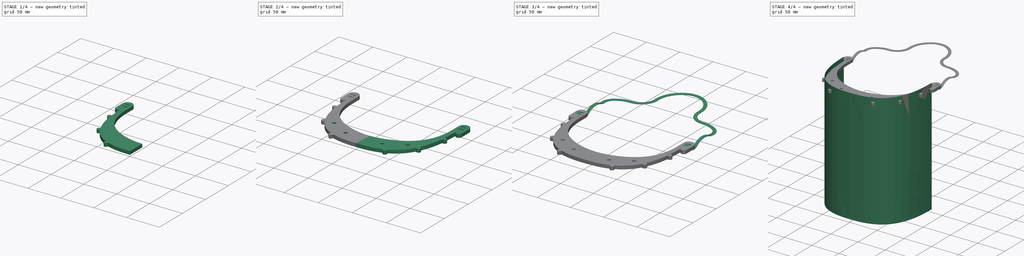
[diagram: build sequence overview — one tinted view per stage of 4, left to right]
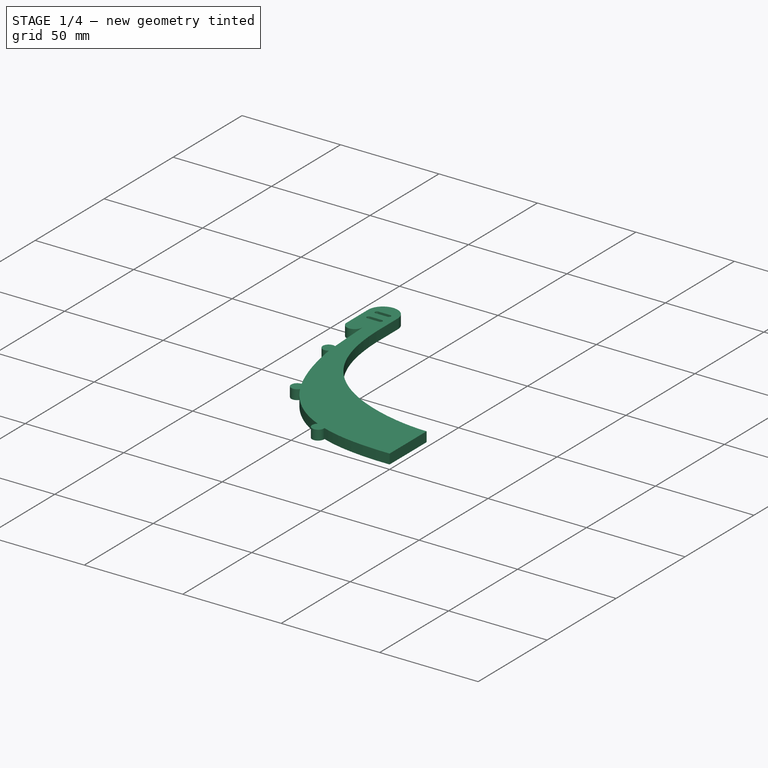
[diagram: stage 1 of 4 — iso view after this stage's code; geometry added in this stage tinted green]
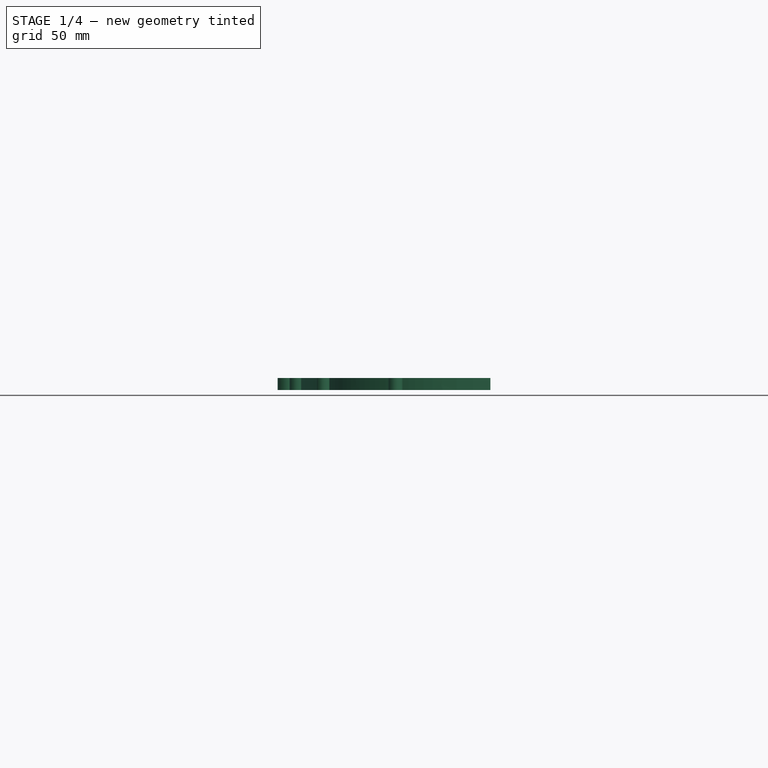
[diagram: stage 1 of 4 — front view after this stage's code; geometry added in this stage tinted green]
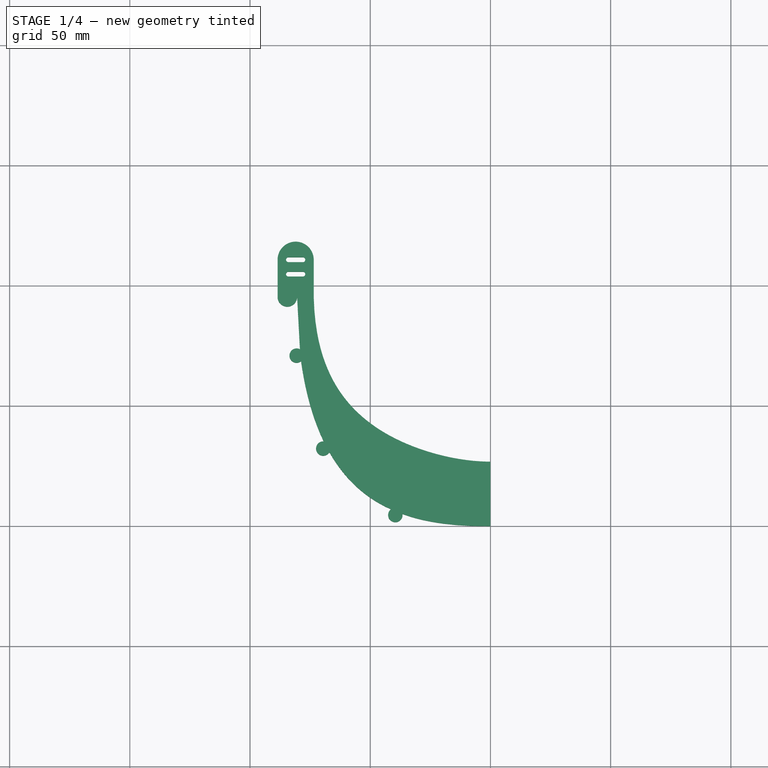
[diagram: stage 1 of 4 — top view after this stage's code; geometry added in this stage tinted green]
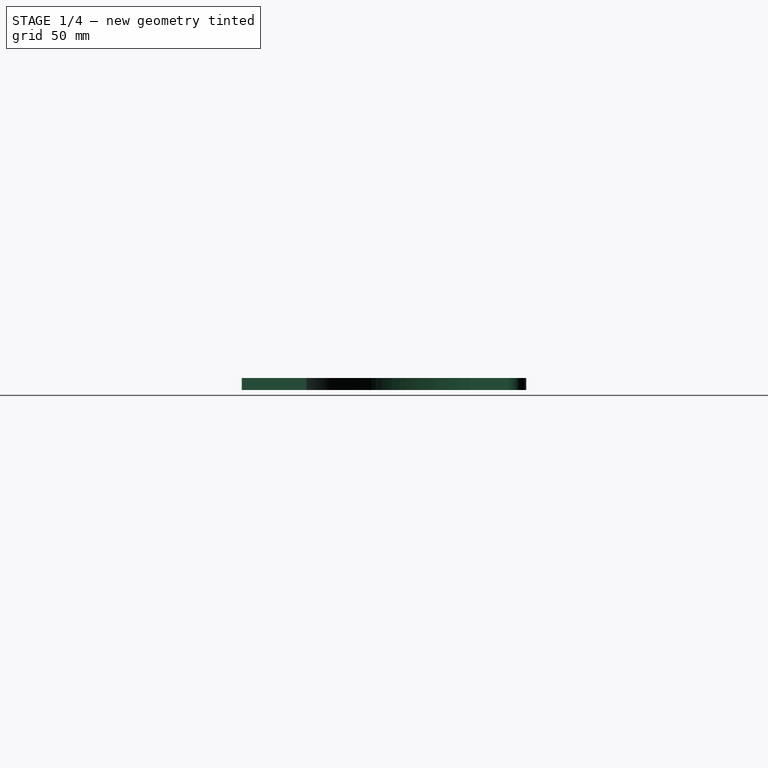
[diagram: stage 1 of 4 — right view after this stage's code; geometry added in this stage tinted green]
FCSTD DOCUMENT  (FreeCAD 0.19R19443 (Git))
Label: M-19_v100k
License: CreativeCommons Attribution
LicenseURL: http://creativecommons.org/licenses/by/4.0/
objects: Sketcher::SketchObject×9, PartDesign::Pad×3, PartDesign::Body×3, Part::Mirroring×3, Part::MultiFuse×3, PartDesign::AdditivePipe×2, PartDesign::Pocket×2, Part::Part2DObjectPython×1
note: 33 computed .brp shape members not serialized (recipe doc carries the construction recipe); baked Part::Feature solids carry a one-line shape summary decoded from their .brp

FEATURE [Sketcher::SketchObject] Sketch135
  sketch-geometry (30):
    g0: Circle [constr] CenterX=-73.5 CenterY=101.84 CenterZ=0 NormalX=0 NormalY=0 NormalZ=1 AngleXU=0 Radius=10
    g1: Circle [constr] CenterX=-74.771 CenterY=49.44 CenterZ=0 NormalX=0 NormalY=0 NormalZ=1 AngleXU=0 Radius=10
    g2: Circle [constr] CenterX=-49.529 CenterY=37.3397 CenterZ=0 NormalX=0 NormalY=0 NormalZ=1 AngleXU=0 Radius=10
    g3: BSplineCurve PolesCount=5 KnotsCount=2 Degree=4 IsPeriodic=0
    g4: GeomPoint [constr] X=-73.5 Y=101.84 Z=0
    g5: GeomPoint [constr] X=0 Y=26.8397 Z=0
    g6: Circle [constr] CenterX=-22.686 CenterY=26.7801 CenterZ=0 NormalX=0 NormalY=0 NormalZ=1 AngleXU=0 Radius=10
    g7: Circle [constr] CenterX=0 CenterY=26.8397 CenterZ=0 NormalX=0 NormalY=0 NormalZ=1 AngleXU=0 Radius=10
    g8: LineSegment StartX=0 StartY=26.8397 StartZ=0 EndX=0 EndY=0 EndZ=0
    g9: Circle [constr] CenterX=0 CenterY=0 CenterZ=0 NormalX=0 NormalY=0 NormalZ=1 AngleXU=0 Radius=3
    g10: Circle [constr] CenterX=-24.669 CenterY=-0.204 CenterZ=0 NormalX=0 NormalY=0 NormalZ=1 AngleXU=0 Radius=3
    g11: Circle [constr] CenterX=-39 CenterY=6.04 CenterZ=0 NormalX=0 NormalY=0 NormalZ=1 AngleXU=0 Radius=3
    g12: BSplineCurve PolesCount=3 KnotsCount=2 Degree=2 IsPeriodic=0
    g13: GeomPoint [constr] X=0 Y=0 Z=0
    g14: GeomPoint [constr] X=-39 Y=6.04 Z=0
    g15: Circle [constr] CenterX=-39 CenterY=6.04 CenterZ=0 NormalX=0 NormalY=0 NormalZ=1 AngleXU=0 Radius=7
    g16: Circle [constr] CenterX=-72.6 CenterY=18.986 CenterZ=0 NormalX=0 NormalY=0 NormalZ=1 AngleXU=0 Radius=7
    g17: BSplineCurve PolesCount=3 KnotsCount=2 Degree=2 IsPeriodic=0
    g18: GeomPoint [constr] X=-39 Y=6.04 Z=0
    g19: GeomPoint [constr] X=-79.11 Y=71.198 Z=0
    g20: Circle [constr] CenterX=-79.11 CenterY=71.198 CenterZ=0 NormalX=0 NormalY=0 NormalZ=1 AngleXU=0 Radius=7
    g21: Circle [constr] CenterX=-79.11 CenterY=71.198 CenterZ=0 NormalX=0 NormalY=0 NormalZ=1 AngleXU=0 Radius=5
    g22: Circle [constr] CenterX=-80.407 CenterY=95.3618 CenterZ=0 NormalX=0 NormalY=0 NormalZ=1 AngleXU=0 Radius=5
    g23: BSplineCurve PolesCount=2 KnotsCount=2 Degree=1 IsPeriodic=0
    g24: GeomPoint [constr] X=-79.11 Y=71.198 Z=0
    g25: GeomPoint [constr] X=-80.407 Y=95.3618 Z=0
    g26: ArcOfCircle CenterX=-84.471 CenterY=95.3618 CenterZ=0 NormalX=0 NormalY=0 NormalZ=1 AngleXU=0 Radius=4.064 StartAngle=3.14159 EndAngle=6.28319
    g27: LineSegment StartX=-88.535 StartY=95.3618 StartZ=0 EndX=-88.535 EndY=110.84 EndZ=0
    g28: LineSegment StartX=-73.5 StartY=110.84 StartZ=0 EndX=-73.5 EndY=101.84 EndZ=0
    g29: ArcOfCircle CenterX=-81.0175 CenterY=110.84 CenterZ=0 NormalX=0 NormalY=0 NormalZ=1 AngleXU=0 Radius=7.5175 StartAngle=0 EndAngle=3.14159
  constraints (74):
    c: Radius(g0) = 10
    c: Equal(g0,g1)
    c: Equal(g0,g2)
    c: InternalAlignment(g0,g3)
    c: InternalAlignment(g1,g3)
    c: InternalAlignment(g2,g3)
    c: InternalAlignment(g4,g3)
    c: InternalAlignment(g5,g3)
    c: InternalAlignment(g6,g3)
    c: Equal(g6,g0)
    c: InternalAlignment(g7,g3)
    c: Equal(g7,g0)
    c: Coincident(g8,g3)
    c: Vertical(g8)
    c: DistanceY(g8,g8) = 26.8397
    c: Coincident(g12,g8)
    c: Radius(g9) = 3
    c: Equal(g9,g10)
    c: Equal(g9,g11)
    c: InternalAlignment(g9,g12)
    c: InternalAlignment(g10,g12)
    c: InternalAlignment(g11,g12)
    c: InternalAlignment(g13,g12)
    c: InternalAlignment(g14,g12)
    c: Coincident(g17,g12)
    c: Radius(g15) = 7
    c: Equal(g15,g16)
    c: InternalAlignment(g15,g17)
    c: InternalAlignment(g16,g17)
    c: InternalAlignment(g18,g17)
    c: InternalAlignment(g19,g17)
    c: InternalAlignment(g20,g17)
    c: Equal(g20,g15)
    c: Radius(g21) = 5
    c: Equal(g21,g22)
    c: InternalAlignment(g21,g23)
    c: InternalAlignment(g22,g23)
    c: InternalAlignment(g24,g23)
    c: InternalAlignment(g25,g23)
    c: Coincident(g23,g17)
    c: Vertical(g27)
    c: Coincident(g28,g3)
    c: Vertical(g28)
    c: DistanceX(g6,g3) = 22.686
    c: DistanceY(g6,g3) = 0.059601
    c: DistanceX(g2,g3) = 49.529
    c: DistanceY(g3,g2) = 10.5
    c: DistanceX(g3,g3) = 73.5
    c: DistanceY(g3,g3) = 75
    c: DistanceX(g10,g8) = 24.669
    c: DistanceY(g10,g8) = 0.204
    c: DistanceX(g12,g8) = 39
    c: DistanceY(g8,g12) = 6.04
    c: DistanceX(g16,g8) = 72.6
    c: DistanceY(g8,g16) = 18.986
    c: DistanceX(g1,g8) = 74.771
    c: DistanceY(g8,g1) = 49.44
    c: DistanceX(g17,g8) = 79.11
    c: DistanceY(g8,g17) = 71.198
    c: DistanceX(g23,g8) = 80.407
    c: DistanceY(g28,g28) = 9
    c: Tangent(g26,g27) = 1.5708
    c: PointOnObject(g3,g-2)
    c: Angle(g29) = 3.14159
    c: Coincident(g29,g28)
    c: Coincident(g29,g27)
    c: DistanceY(g29,g28) = 0
    c: DistanceY(g-1,g8) = 0
    c: DistanceY(g26,g23) = 0
    c: Coincident(g22,g23)
    c: Coincident(g22,g25)
    c: Coincident(g22,g26)
    c: Radius(g26) = 4.064
    c: DistanceY(g26,g23) = 0
FEATURE [PartDesign::Pad] Pad
  Length = 5.0038
  Length2 = 99.9998
  Profile = -> Sketch135
  Refine = true
  Type = 0
FEATURE [PartDesign::Pocket] Pocket
  BaseFeature = -> Pad
  Length = 5.0038
  Length2 = 99.9998
  Profile = -> Sketch136
  Refine = true
  Type = 1
FEATURE [Sketcher::SketchObject] Sketch137
  ExternalGeometry = -> [Pocket]
  MapMode = 5
  Placement = pos=(0,0,5.0038) rot=(0,0,1;0rad)
  sketch-geometry (14):
    g0: Circle [constr] CenterX=-39 CenterY=6.04 CenterZ=0 NormalX=0 NormalY=0 NormalZ=1 AngleXU=0 Radius=1.5
    g1: Circle CenterX=-39.5498 CenterY=4.64437 CenterZ=0 NormalX=0 NormalY=0 NormalZ=1 AngleXU=0 Radius=3
    g2: LineSegment [constr] StartX=-40.3956 StartY=6.58975 StartZ=0 EndX=-37.6044 EndY=5.49025 EndZ=0
    g3: LineSegment [constr] StartX=-39 StartY=6.04 StartZ=0 EndX=-39.5498 EndY=4.64437 EndZ=0
    g4: Circle [constr] CenterX=-79.11 CenterY=71.198 CenterZ=0 NormalX=0 NormalY=0 NormalZ=1 AngleXU=0 Radius=1.5
    g5: Circle CenterX=-80.5894 CenterY=70.9504 CenterZ=0 NormalX=0 NormalY=0 NormalZ=1 AngleXU=0 Radius=3
    g6: LineSegment [constr] StartX=-79.3576 StartY=72.6774 StartZ=0 EndX=-78.8624 EndY=69.7186 EndZ=0
    g7: LineSegment [constr] StartX=-79.11 StartY=71.198 StartZ=0 EndX=-80.5894 EndY=70.9504 EndZ=0
    g8: LineSegment [constr] StartX=-79.11 StartY=71.198 StartZ=0 EndX=-39 EndY=6.04 EndZ=0
    g9: LineSegment [constr] StartX=-59.055 StartY=38.619 StartZ=0 EndX=-68.2095 EndY=32.9837 EndZ=0
    g10: Circle [constr] CenterX=-68.2095 CenterY=32.9837 CenterZ=0 NormalX=0 NormalY=0 NormalZ=1 AngleXU=0 Radius=1.5
    g11: LineSegment [constr] StartX=-68.9137 StartY=34.3081 StartZ=0 EndX=-67.5053 EndY=31.6592 EndZ=0
    g12: LineSegment [constr] StartX=-68.2095 StartY=32.9837 StartZ=0 EndX=-69.5339 EndY=32.2794 EndZ=0
    g13: Circle CenterX=-69.5339 CenterY=32.2794 CenterZ=0 NormalX=0 NormalY=0 NormalZ=1 AngleXU=0 Radius=3
  constraints (38):
    c: Radius(g0) = 1.5
    c: Radius(g1) = 3
    c: Tangent(g1,g0)
    c: PointOnObject(g2,g0)
    c: PointOnObject(g2,g0)
    c: PointOnObject(g0,g2)
    c: Angle(g2) = -0.375246
    c: Coincident(g3,g0)
    c: Coincident(g3,g1)
    c: Angle(g2,g3) = 1.5708
    c: Radius(g4) = 1.5
    c: Radius(g5) = 3
    c: PointOnObject(g6,g4)
    c: PointOnObject(g4,g6)
    c: PointOnObject(g6,g4)
    c: Angle(g6) = -1.40499
    c: Coincident(g7,g4)
    c: PointOnObject(g7,g4)
    c: Angle(g7,g6) = 1.5708
    c: Coincident(g5,g7)
    c: Coincident(g0,g-3)
    c: Coincident(g4,g-3)
    c: Coincident(g8,g4)
    c: Coincident(g8,g0)
    c: PointOnObject(g9,g8)
    c: Symmetric(g4,g0,g9)
    c: Coincident(g10,g12)
    c: PointOnObject(g12,g10)
    c: PointOnObject(g11,g10)
    c: PointOnObject(g11,g10)
    c: PointOnObject(g10,g11)
    c: Perpendicular(g11,g12)
    c: Equal(g10,g0)
    c: Equal(g13,g1)
    c: Coincident(g13,g12)
    c: Distance(g9) = 10.75
    c: Coincident(g10,g9)
    c: Angle(g11) = -1.0821
FEATURE [PartDesign::Pad] Pad003
  BaseFeature = -> Pocket
  Length = 5.0038
  Length2 = 99.9998
  Profile = -> Sketch137
  Refine = true
  Reversed = true
  Type = 0
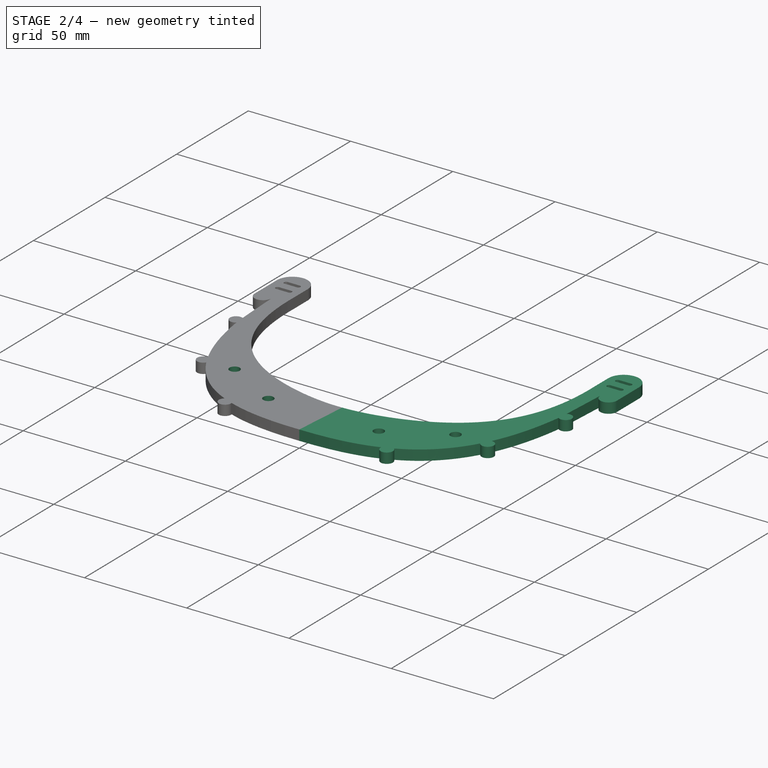
[diagram: stage 2 of 4 — iso view after this stage's code; geometry added in this stage tinted green]
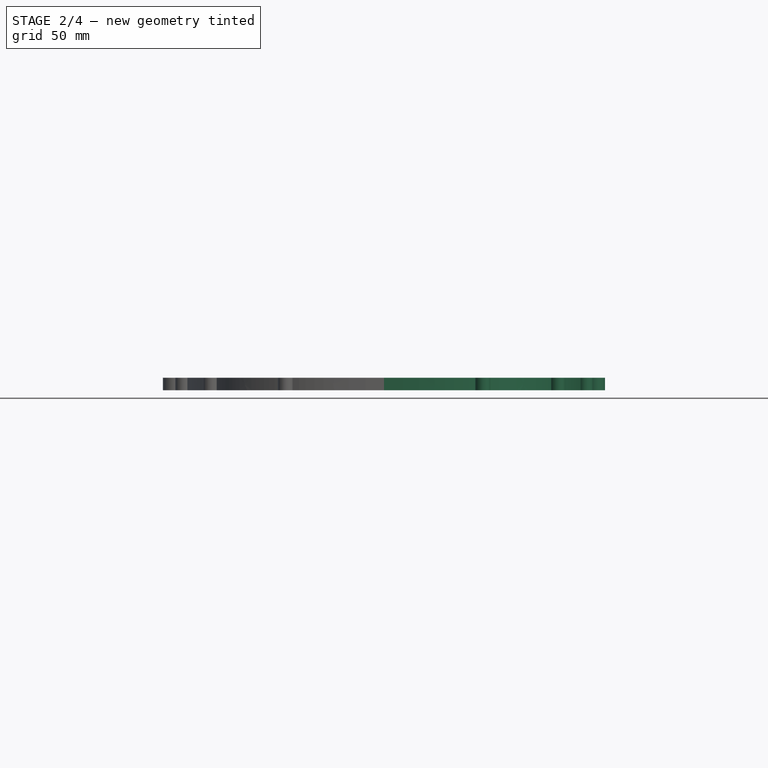
[diagram: stage 2 of 4 — front view after this stage's code; geometry added in this stage tinted green]
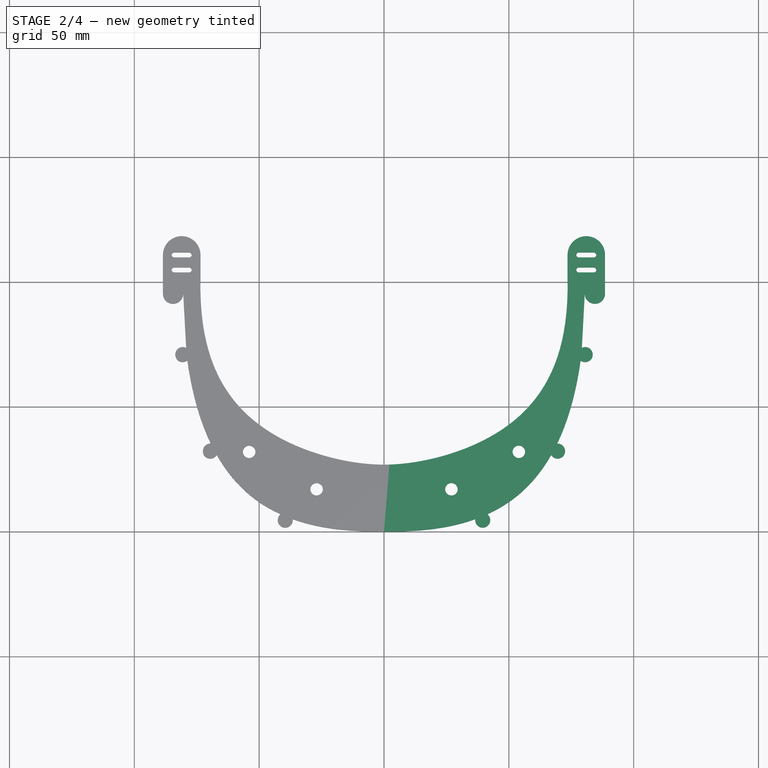
[diagram: stage 2 of 4 — top view after this stage's code; geometry added in this stage tinted green]
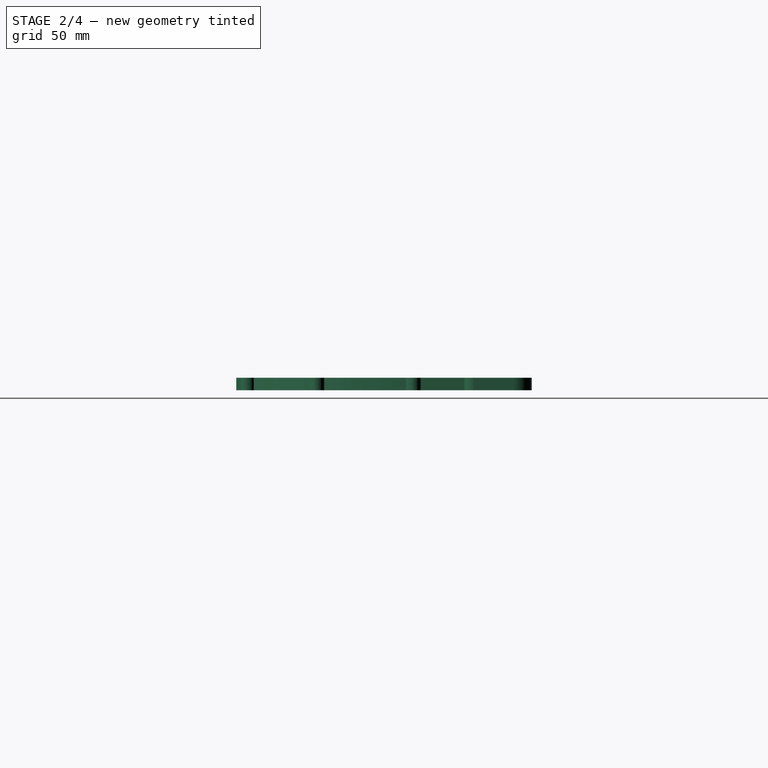
[diagram: stage 2 of 4 — right view after this stage's code; geometry added in this stage tinted green]
FEATURE [Sketcher::SketchObject] Sketch
  MapMode = 5
  Placement = pos=(0,0,5.0038) rot=(0,0,1;0rad)
  Support = -> [Pad003]
  sketch-geometry (2):
    g0: Circle CenterX=-27 CenterY=17 CenterZ=0 NormalX=0 NormalY=0 NormalZ=1 AngleXU=0 Radius=2.5
    g1: Circle CenterX=-54 CenterY=32 CenterZ=0 NormalX=0 NormalY=0 NormalZ=1 AngleXU=0 Radius=2.5
  constraints (6):
    c: Radius(g1) = 2.5
    c: Equal(g1,g0)
    c: DistanceX(g-2,g0) = -27
    c: DistanceX(g1,g0) = 27
    c: DistanceY(g0,g1) = 15
    c: DistanceY(g-1,g0) = 17
FEATURE [PartDesign::Pocket] Pocket001
  BaseFeature = -> Pad003
  Length = 5.0038
  Length2 = 99.9998
  Profile = -> Sketch
  Refine = true
  Type = 1
FEATURE [PartDesign::Body] Body
  Group = -> [Sketch135,Sketch136,Sketch137,Pad,Sketch,Pocket,Pad003,Pocket001]
  Origin = -> Origin
  Tip = -> Pocket001
FEATURE [Part::Mirroring] Part__Mirroring  label="Body (Mirror #2)"
  Base = (0,0,0)
  Normal = (1,0,0)
  Source = -> Body
FEATURE [Part::MultiFuse] Fusion
  Refine = true
  Shapes = -> [Part__Mirroring,Body]
FEATURE [Part::Part2DObjectPython] Shape2DView  # Draft 2D object (typed FeaturePython)
  Base = -> Fusion
  FuseArch = false
  HiddenLines = false
  InPlace = true
  Projection = (0,0,1)
  ProjectionMode = 0
  SegmentLength = 0.05
  Tessellation = false
  Visibility1 = false
  VisibleOnly = false
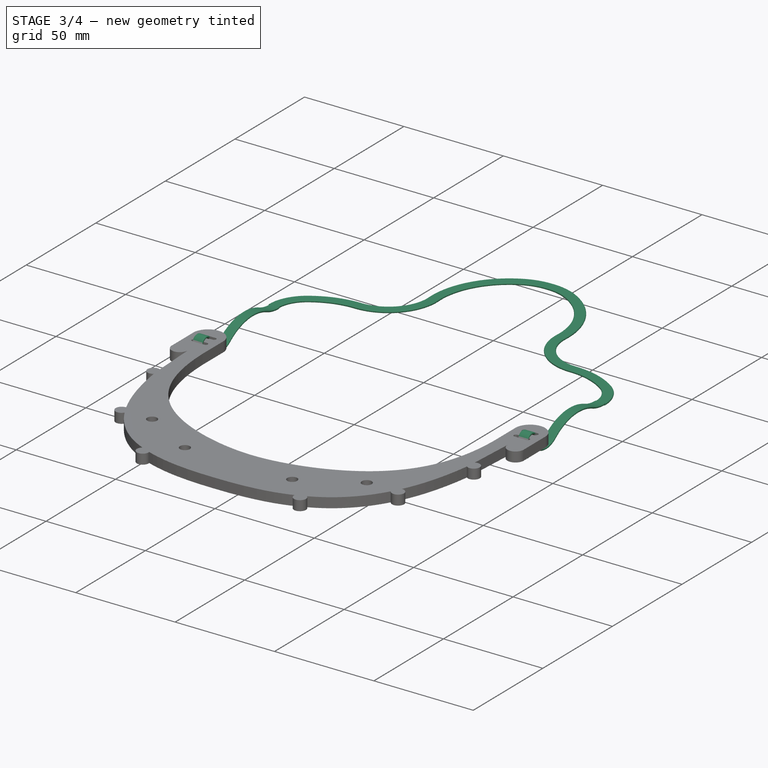
[diagram: stage 3 of 4 — iso view after this stage's code; geometry added in this stage tinted green]
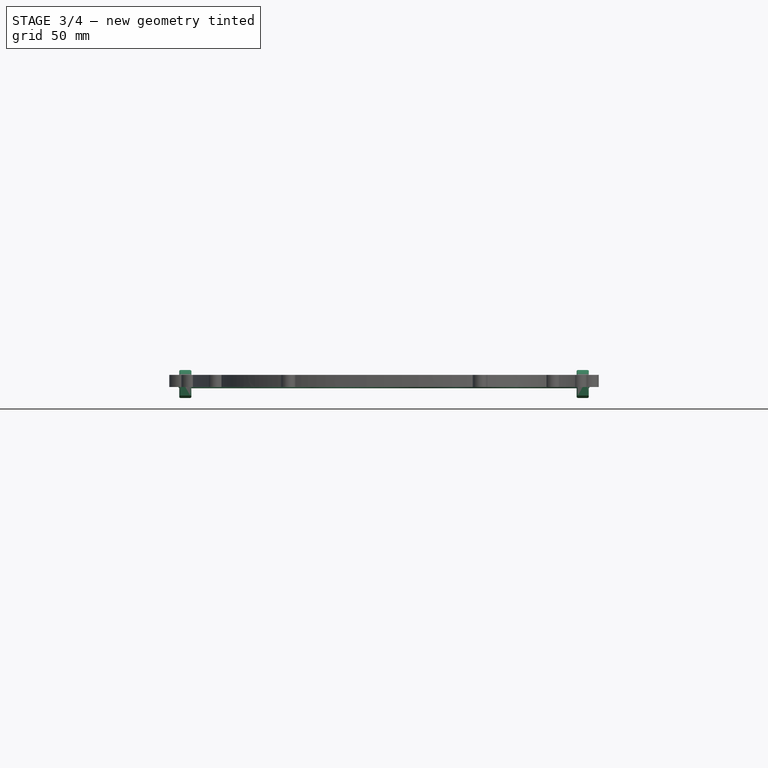
[diagram: stage 3 of 4 — front view after this stage's code; geometry added in this stage tinted green]
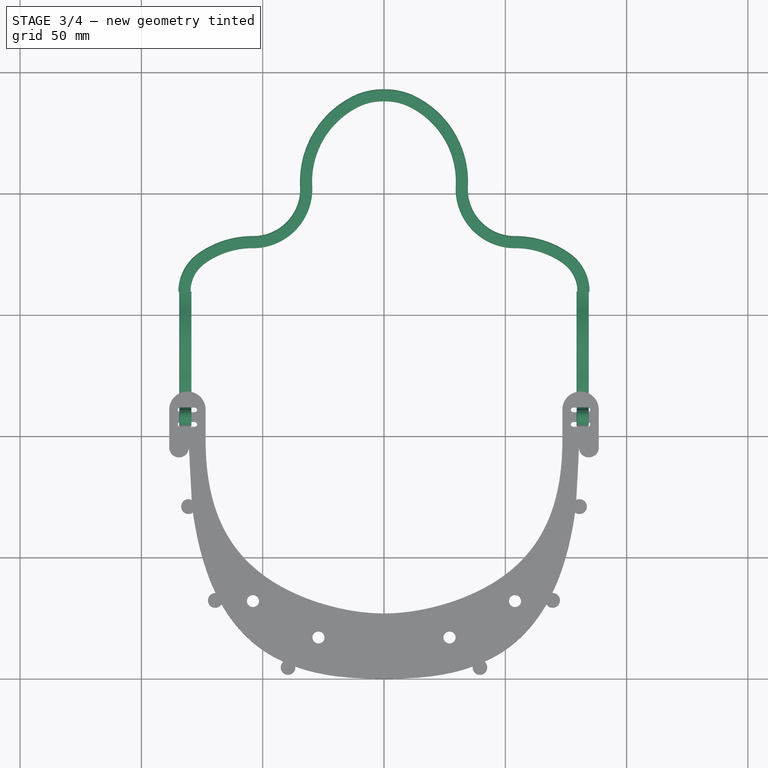
[diagram: stage 3 of 4 — top view after this stage's code; geometry added in this stage tinted green]
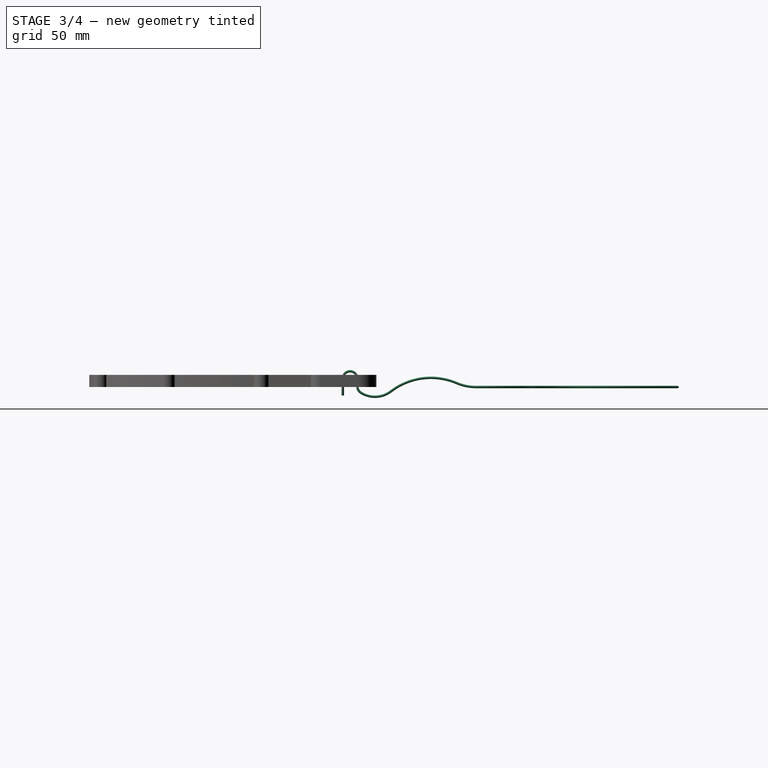
[diagram: stage 3 of 4 — right view after this stage's code; geometry added in this stage tinted green]
FEATURE [Sketcher::SketchObject] Sketch141
  AttachmentOffset = pos=(0,0,-82) rot=(0,0,1;0rad)
  MapMode = 5
  Placement = pos=(-82,1.82e-14,-1.82e-14) rot=(0.57735,0.57735,0.57735;2.0944rad)
  Support = -> [YZ_Plane003]
  sketch-geometry (7):
    g0: LineSegment StartX=104.5 StartY=-3.5 StartZ=0 EndX=104.5 EndY=3.5 EndZ=0
    g1: ArcOfCircle CenterX=107.5 CenterY=3.5 CenterZ=0 NormalX=0 NormalY=0 NormalZ=1 AngleXU=0 Radius=3 StartAngle=0 EndAngle=3.14159
    g2: LineSegment StartX=110.5 StartY=3.5 StartZ=0 EndX=110.5 EndY=0.299847 EndZ=0
    g3: ArcOfCircle CenterX=113.562 CenterY=0.299847 CenterZ=0 NormalX=0 NormalY=0 NormalZ=1 AngleXU=0 Radius=3.06158 StartAngle=3.14159 EndAngle=4.1389
    g4: ArcOfCircle CenterX=117.766 CenterY=6.80852 CenterZ=0 NormalX=0 NormalY=0 NormalZ=1 AngleXU=0 Radius=10.8099 StartAngle=4.1389 EndAngle=5.36458
    g5: ArcOfCircle CenterX=140.824 CenterY=-23.3858 CenterZ=0 NormalX=0 NormalY=0 NormalZ=1 AngleXU=0 Radius=27.1821 StartAngle=1.16919 EndAngle=2.22299
    g6: ArcOfCircle CenterX=159.479 CenterY=20.5409 CenterZ=0 NormalX=0 NormalY=0 NormalZ=1 AngleXU=0 Radius=20.5418 StartAngle=4.31079 EndAngle=4.72142
  constraints (13):
    c: Tangent(g0,g1) = 1.5708
    c: Vertical(g0)
    c: Angle(g1) = 3.14159
    c: Radius(g1) = 3
    c: DistanceY(g0,g0) = 7
    c: DistanceX(g-2,g0) = 104.5
    c: DistanceY(g-1,g0) = -3.5
    c: Tangent(g1,g2) = 1.5708
    c: Tangent(g2,g3) = -1.5708
    c: Tangent(g3,g4) = -1.5708
    c: Tangent(g4,g5) = 1.5708
    c: PointOnObject(g6,g-1)
    c: Tangent(g6,g5) = 1.5708
FEATURE [Sketcher::SketchObject] Sketch142
  ExternalGeometry = -> [Sketch141]
  MapMode = 5
  Support = -> [XY_Plane003]
  sketch-geometry (5):
    g0: ArcOfCircle CenterX=-65.5217 CenterY=159.645 CenterZ=0 NormalX=0 NormalY=0 NormalZ=1 AngleXU=0 Radius=16.4783 StartAngle=2.18984 EndAngle=3.14159
    g1: ArcOfCircle CenterX=-54.1457 CenterY=143.678 CenterZ=0 NormalX=0 NormalY=0 NormalZ=1 AngleXU=0 Radius=36.0834 StartAngle=1.56764 EndAngle=2.18984
    g2: ArcOfCircle CenterX=-53.9622 CenterY=201.899 CenterZ=0 NormalX=0 NormalY=0 NormalZ=1 AngleXU=0 Radius=22.1375 StartAngle=4.70924 EndAngle=6.33479
    g3: ArcOfCircle CenterX=4.70479 CenterY=204.929 CenterZ=0 NormalX=0 NormalY=0 NormalZ=1 AngleXU=0 Radius=36.6077 StartAngle=2.03634 EndAngle=3.1932
    g4: ArcOfCircle CenterX=-0.603118 CenterY=215.495 CenterZ=0 NormalX=0 NormalY=0 NormalZ=1 AngleXU=0 Radius=24.7836 StartAngle=1.54646 EndAngle=2.03634
  constraints (6):
    c: Tangent(g0,g1) = -1.5708
    c: Tangent(g1,g2) = 1.5708
    c: Tangent(g2,g3) = 1.5708
    c: Tangent(g3,g4) = -1.5708
    c: PointOnObject(g4,g-2)
    c: DistanceY(g0,g0) = 0
FEATURE [Sketcher::SketchObject] Sketch143
  MapMode = 5
  Support = -> [XY_Plane003]
  sketch-geometry (4):
    g0: ArcOfCircle CenterX=-83.8908 CenterY=104.511 CenterZ=0 NormalX=0 NormalY=0 NormalZ=1 AngleXU=0 Radius=0.5 StartAngle=1.5708 EndAngle=4.71239
    g1: ArcOfCircle CenterX=-79.8908 CenterY=104.511 CenterZ=0 NormalX=0 NormalY=0 NormalZ=1 AngleXU=0 Radius=0.5 StartAngle=4.71239 EndAngle=7.85398
    g2: LineSegment StartX=-83.8908 StartY=104.011 StartZ=0 EndX=-79.8908 EndY=104.011 EndZ=0
    g3: LineSegment StartX=-83.8908 StartY=105.011 StartZ=0 EndX=-79.8908 EndY=105.011 EndZ=0
  constraints (8):
    c: Tangent(g0,g3) = 1.5708
    c: Tangent(g0,g2) = -1.5708
    c: Tangent(g2,g1) = -1.5708
    c: Tangent(g3,g1) = 1.5708
    c: Horizontal(g2)
    c: Equal(g0,g1)
    c: DistanceX(g0,g1) = 4
    c: Radius(g0) = 0.5
FEATURE [PartDesign::AdditivePipe] AdditivePipe
  AuxilleryCurvelinear = true
  AuxillerySpineTangent = false
  Binormal = (0,0,0)
  Mode = 0
  Profile = -> Sketch143
  Refine = true
  Spine = -> Sketch141 [Edge1,Edge2,Edge3,Edge4,Edge5,Edge6,Edge7]
  SpineTangent = false
  Transformation = 0
  Transition = 0
FEATURE [Sketcher::SketchObject] Sketch144
  MapMode = 5
  Placement = pos=(0,0,0) rot=(0.57735,0.57735,0.57735;2.0944rad)
  Support = -> [YZ_Plane003]
  sketch-geometry (4):
    g0: ArcOfCircle CenterX=238.5 CenterY=0 CenterZ=0 NormalX=0 NormalY=0 NormalZ=1 AngleXU=0 Radius=0.5 StartAngle=1.5708 EndAngle=4.71239
    g1: ArcOfCircle CenterX=242.5 CenterY=-5.7751e-12 CenterZ=0 NormalX=0 NormalY=0 NormalZ=1 AngleXU=0 Radius=0.5 StartAngle=4.71239 EndAngle=7.85398
    g2: LineSegment StartX=238.5 StartY=-0.5 StartZ=0 EndX=242.5 EndY=-0.5 EndZ=0
    g3: LineSegment StartX=238.5 StartY=0.5 StartZ=0 EndX=242.5 EndY=0.5 EndZ=0
  constraints (10):
    c: Tangent(g0,g3) = 1.5708
    c: Tangent(g0,g2) = -1.5708
    c: Tangent(g2,g1) = -1.5708
    c: Tangent(g3,g1) = 1.5708
    c: Horizontal(g2)
    c: Equal(g0,g1)
    c: DistanceX(g0,g1) = 4
    c: Radius(g0) = 0.5
    c: PointOnObject(g0,g-1)
    c: DistanceX(g-2,g0) = 238.5
FEATURE [PartDesign::AdditivePipe] AdditivePipe001
  AuxilleryCurvelinear = true
  AuxillerySpineTangent = false
  BaseFeature = -> AdditivePipe
  Binormal = (0,0,0)
  Mode = 0
  Profile = -> Sketch144
  Refine = true
  Spine = -> Sketch142 [Edge1,Edge2,Edge3,Edge4,Edge5]
  SpineTangent = false
  Transformation = 0
  Transition = 0
FEATURE [PartDesign::Body] Body003
  Group = -> [Sketch141,Sketch142,Sketch143,AdditivePipe,Sketch144,AdditivePipe001]
  Origin = -> Origin003
  Tip = -> AdditivePipe001
FEATURE [Part::Mirroring] Part__Mirroring002  label="Body003 (Mirror #3)"
  Base = (0,0,0)
  Normal = (1,0,0)
  Source = -> Body003
FEATURE [Part::MultiFuse] Fusion002
  Refine = true
  Shapes = -> [Part__Mirroring002,Body003]
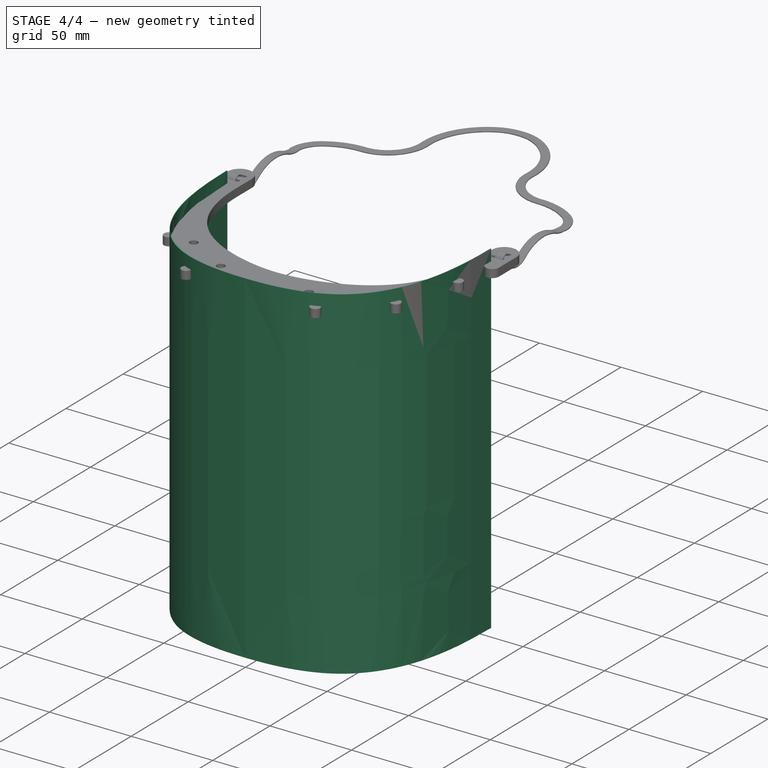
[diagram: stage 4 of 4 — iso view after this stage's code; geometry added in this stage tinted green]
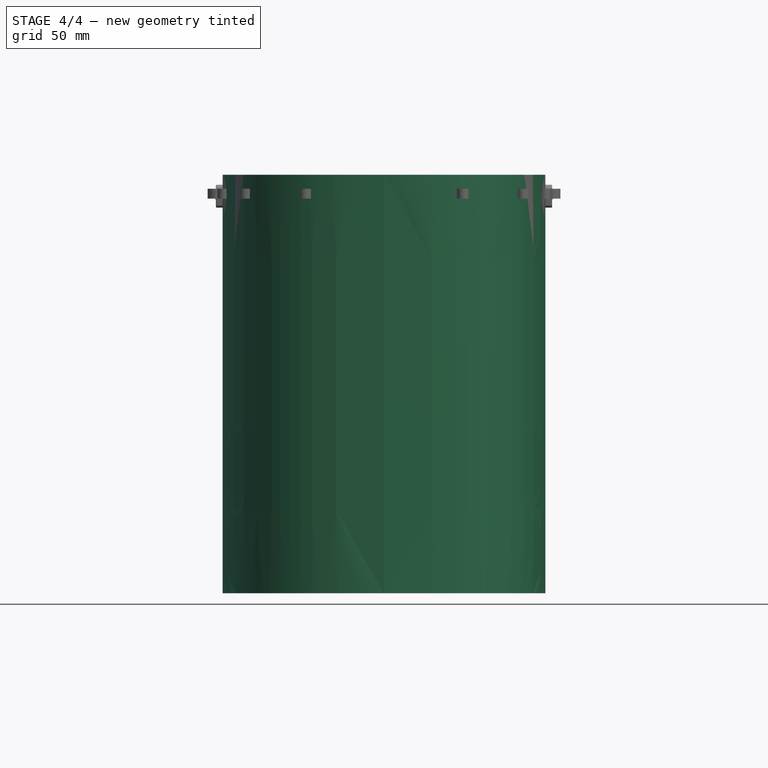
[diagram: stage 4 of 4 — front view after this stage's code; geometry added in this stage tinted green]
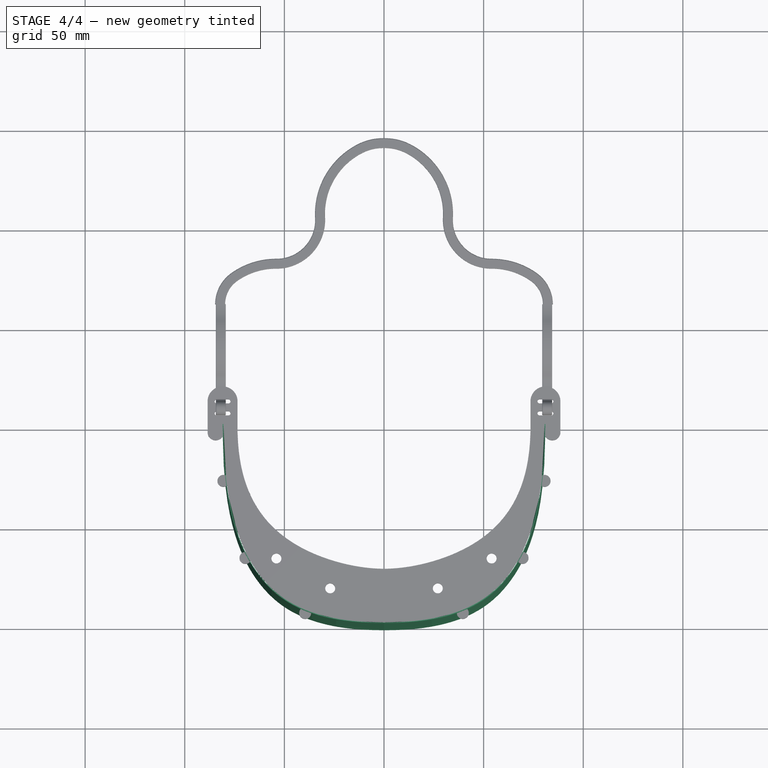
[diagram: stage 4 of 4 — top view after this stage's code; geometry added in this stage tinted green]
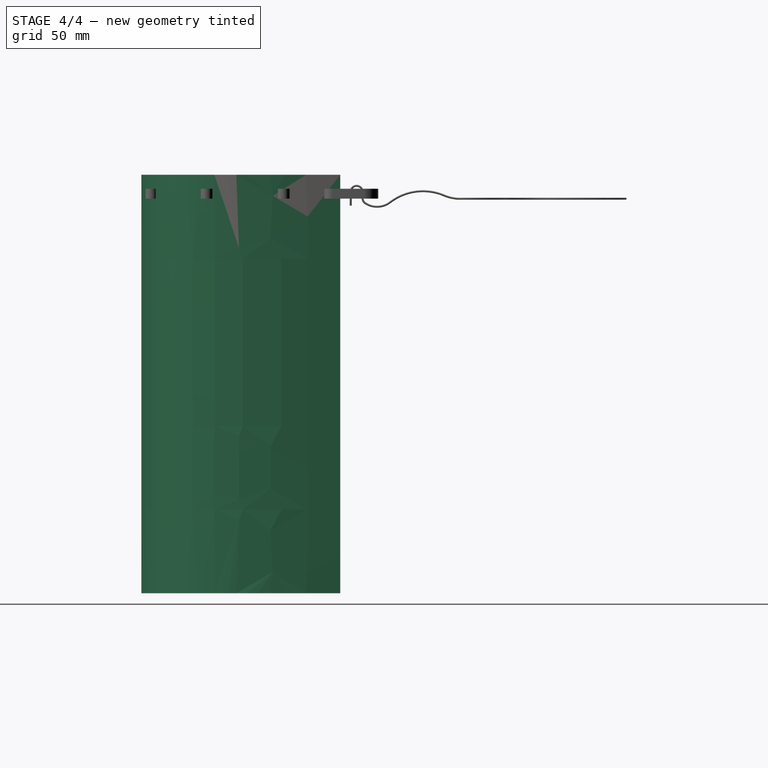
[diagram: stage 4 of 4 — right view after this stage's code; geometry added in this stage tinted green]
FEATURE [Sketcher::SketchObject] Sketch136
  ExternalGeometry = -> [Pad]
  MapMode = 5
  Placement = pos=(0,0,5.0038) rot=(0,0,1;0rad)
  Support = -> [Pad]
  sketch-geometry (10):
    g0: ArcOfCircle CenterX=-84.0175 CenterY=110.84 CenterZ=0 NormalX=0 NormalY=0 NormalZ=1 AngleXU=0 Radius=1 StartAngle=1.5708 EndAngle=4.71239
    g1: ArcOfCircle CenterX=-78.0175 CenterY=110.84 CenterZ=0 NormalX=0 NormalY=0 NormalZ=1 AngleXU=0 Radius=1 StartAngle=4.71239 EndAngle=7.85398
    g2: LineSegment StartX=-84.0175 StartY=109.84 StartZ=0 EndX=-78.0175 EndY=109.84 EndZ=0
    g3: LineSegment StartX=-84.0175 StartY=111.84 StartZ=0 EndX=-78.0175 EndY=111.84 EndZ=0
    g4: ArcOfCircle CenterX=-84.0175 CenterY=104.84 CenterZ=0 NormalX=0 NormalY=0 NormalZ=1 AngleXU=0 Radius=1 StartAngle=1.5708 EndAngle=4.71239
    g5: ArcOfCircle CenterX=-78.0175 CenterY=104.84 CenterZ=0 NormalX=0 NormalY=0 NormalZ=1 AngleXU=0 Radius=1 StartAngle=4.71239 EndAngle=7.85398
    g6: LineSegment StartX=-84.0175 StartY=103.84 StartZ=0 EndX=-78.0175 EndY=103.84 EndZ=0
    g7: LineSegment StartX=-84.0175 StartY=105.84 StartZ=0 EndX=-78.0175 EndY=105.84 EndZ=0
    g8: LineSegment [constr] StartX=-78.0175 StartY=110.84 StartZ=0 EndX=-73.5 EndY=110.84 EndZ=0
    g9: LineSegment [constr] StartX=-84.0175 StartY=110.84 StartZ=0 EndX=-88.535 EndY=110.84 EndZ=0
  constraints (26):
    c: Equal(g3,g2)
    c: Equal(g2,g7)
    c: Equal(g7,g6)
    c: Equal(g5,g1)
    c: Equal(g0,g4)
    c: Radius(g0) = 1
    c: DistanceX(g3,g3) = 6
    c: DistanceY(g4,g0) = 6
    c: Horizontal(g6)
    c: Horizontal(g7)
    c: Horizontal(g2)
    c: Tangent(g0,g3) = 1.5708
    c: Tangent(g1,g3) = 1.5708
    c: Tangent(g1,g2) = -1.5708
    c: Tangent(g0,g2) = -1.5708
    c: Tangent(g4,g7) = 1.5708
    c: Tangent(g4,g6) = -1.5708
    c: Tangent(g5,g7) = 1.5708
    c: Tangent(g5,g6) = -1.5708
    c: DistanceX(g4,g0) = 0
    c: Coincident(g8,g1)
    c: Horizontal(g8)
    c: Coincident(g9,g0)
    c: Equal(g9,g8)
    c: Coincident(g9,g-3)
    c: Coincident(g8,g-3)
FEATURE [Sketcher::SketchObject] Sketch140
  sketch-geometry (26):
    g0-g3: Circle [constr] x4 (B-spline internal-alignment scaffolding for g4; pole/knot coordinates omitted)
    g4: BSplineCurve PolesCount=6 KnotsCount=2 Degree=5 IsPeriodic=0
    g5: GeomPoint [constr] X=-80.6268 Y=99.3427 Z=0
    g6: GeomPoint [constr] X=0 Y=-0.267526 Z=0
    g7-g14: Circle [constr] x8 (B-spline internal-alignment scaffolding for g15; pole/knot coordinates omitted)
    g15: BSplineCurve PolesCount=8 KnotsCount=6 Degree=3 IsPeriodic=0
    g16-g21: GeomPoint [constr] x6 (B-spline internal-alignment scaffolding for g15; pole/knot coordinates omitted)
    g22: LineSegment StartX=-80.6268 StartY=99.3427 StartZ=0 EndX=-81 EndY=99.3427 EndZ=0
    g23: Circle [constr] CenterX=-44.5606 CenterY=0 CenterZ=0 NormalX=0 NormalY=0 NormalZ=1 AngleXU=0 Radius=10
    g24: Circle [constr] CenterX=0 CenterY=-0.267526 CenterZ=0 NormalX=0 NormalY=0 NormalZ=1 AngleXU=0 Radius=10
    g25: LineSegment StartX=0 StartY=-0.267526 StartZ=0 EndX=0 EndY=-0.467526 EndZ=0
  constraints (23):
    c: Radius(g0) = 10
    c: Equal(g0,g1)
    c: Equal(g0,g2)
    c: Equal(g0,g3)
    c: InternalAlignment(g0-g3 -> g4) x4
    c: InternalAlignment(g5,g4)
    c: InternalAlignment(g6,g4)
    c: Radius(g7) = 4
    c: Equal(g7, g8-g14) x7
    c: PointOnObject(g15,g-2)
    c: InternalAlignment(g7-g14 -> g15) x8
    c: InternalAlignment(g16-g21 -> g15) x6
    c: DistanceY(g15,g4) = 0.2
    c: Coincident(g22,g4)
    c: Coincident(g22,g15)
    c: Horizontal(g22)
    c: InternalAlignment(g23,g4)
    c: Equal(g23,g0)
    c: InternalAlignment(g24,g4)
    c: Equal(g24,g0)
    c: Coincident(g25,g4)
    c: Coincident(g25,g15)
    c: Vertical(g25)
FEATURE [PartDesign::Pad] Pad002
  Length = 210
  Length2 = 100
  Profile = -> Sketch140
  Refine = true
  Reversed = true
  Type = 0
FEATURE [PartDesign::Body] Body002
  Group = -> [Sketch140,Pad002]
  Origin = -> Origin002
  Placement = pos=(0,0,12) rot=(0,0,1;0rad)
  Tip = -> Pad002
FEATURE [Part::Mirroring] Part__Mirroring001  label="Body002 (Mirror #2)"
  Base = (0,0,0)
  Normal = (1,0,0)
  Source = -> Body002
FEATURE [Part::MultiFuse] Fusion001
  Refine = true
  Shapes = -> [Part__Mirroring001,Body002]
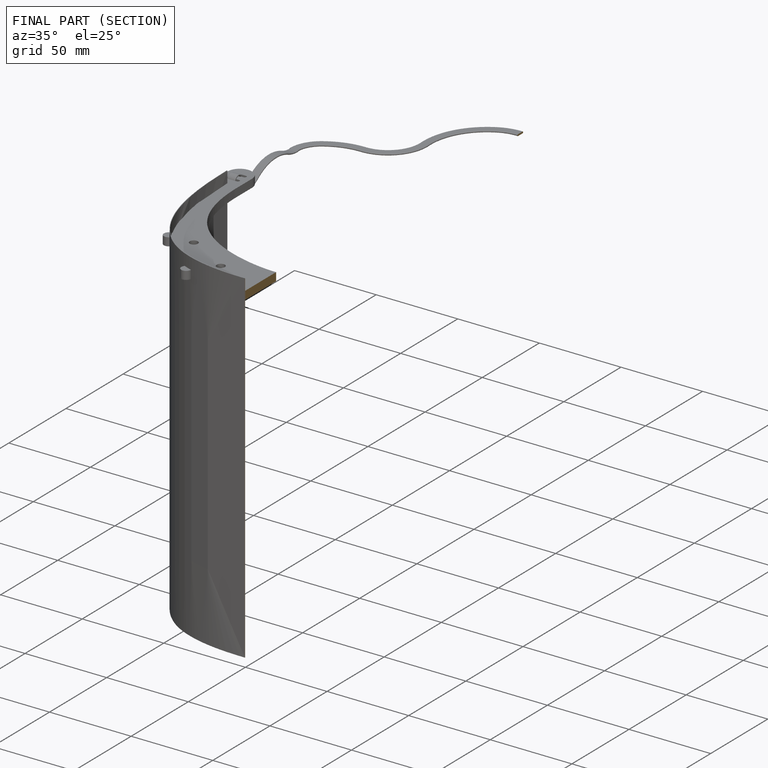
[diagram: finished part — half-section view (interior)]
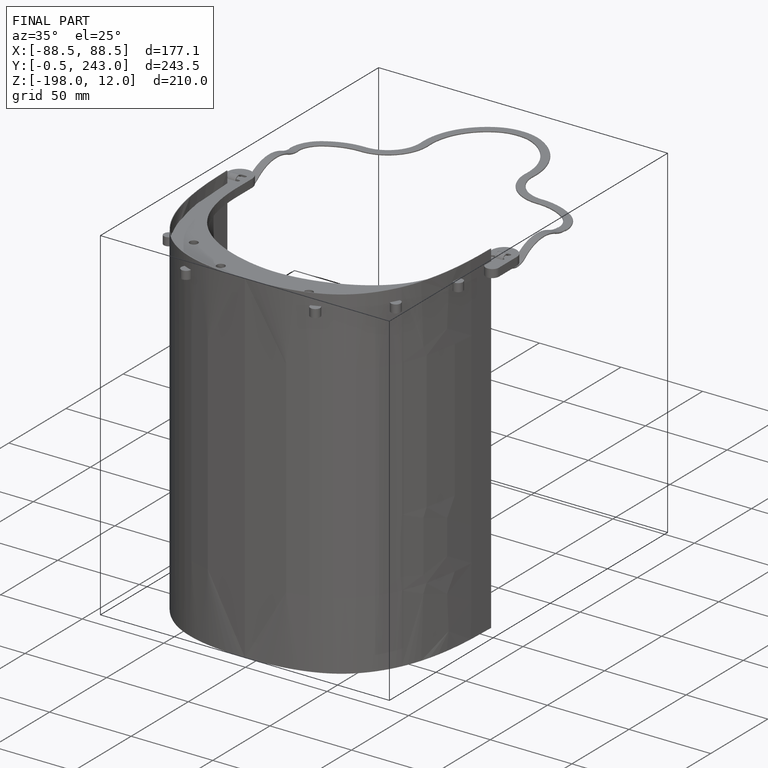
[diagram: finished part — iso view with bounding-box wireframe]
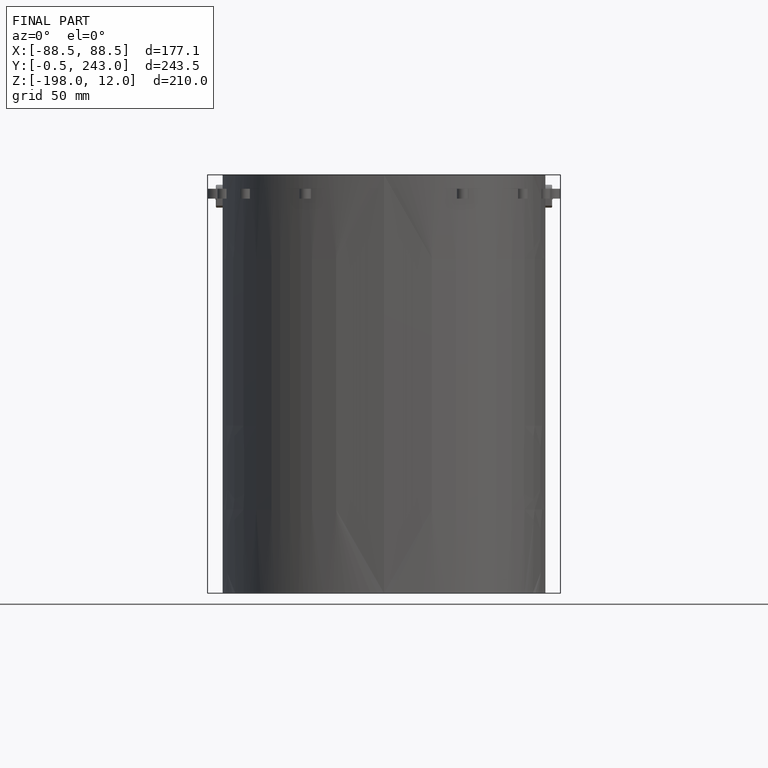
[diagram: finished part — front view with bounding-box wireframe]
